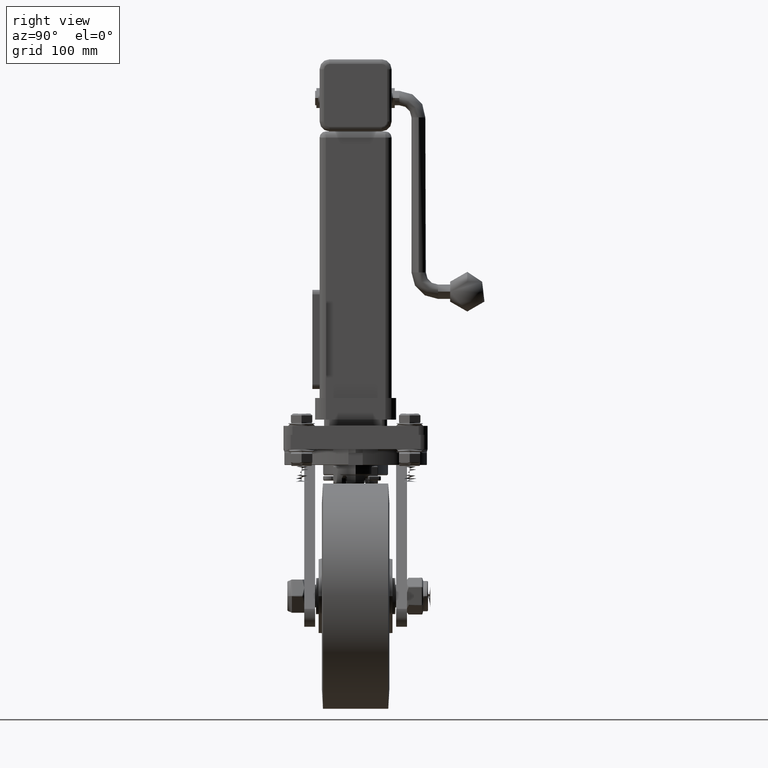
[diagram: clean part render]
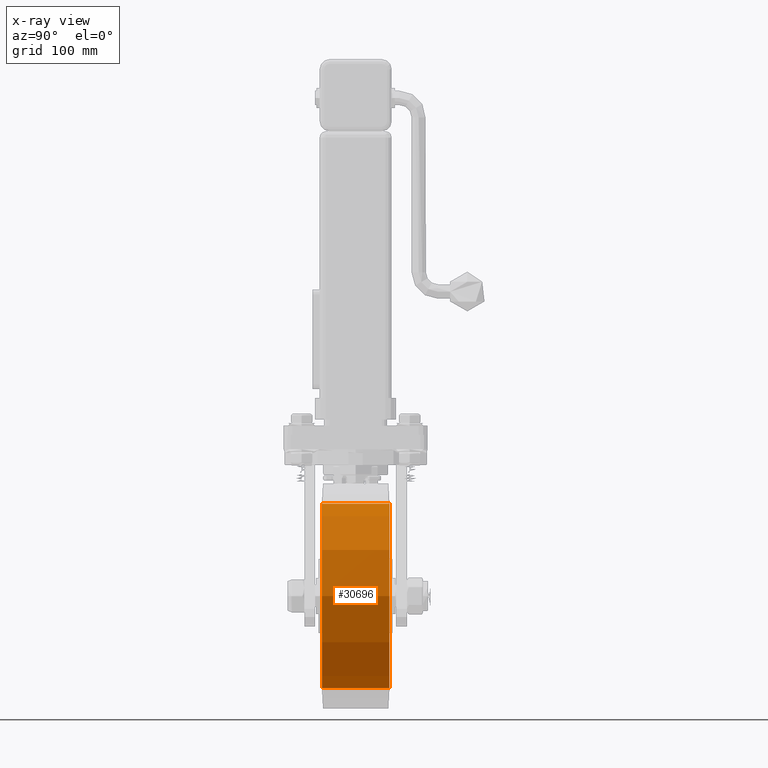
[diagram: x-ray — body ghosted, one internal face saturated and labeled with its STEP entity id]
A machine part, right view, then the same camera in x-ray: the body is ghosted and one INTERNAL B-rep face — a face not visible from any outside direction — is saturated and labeled: STEP entity #30696.
In plain terms, the highlighted cylindrical surface (bore or boss wall) has radius 102.5 mm, axis along (-0, 1, 0).
Its self-contained STEP definition (entity closure, byte-faithful):
#2394=CIRCLE('',#33451,102.5);
#2395=CIRCLE('',#33452,102.5);
#3945=FACE_OUTER_BOUND('',#5885,.T.);
#5885=EDGE_LOOP('',(#21920,#21921,#21922,#21923));
#9379=LINE('',#60185,#11128);
#11128=VECTOR('',#37687,102.5);
#13080=VERTEX_POINT('',#60182);
#13081=VERTEX_POINT('',#60184);
#16369=EDGE_CURVE('',#13080,#13080,#2394,.T.);
#16370=EDGE_CURVE('',#13080,#13081,#9379,.T.);
#16371=EDGE_CURVE('',#13081,#13081,#2395,.T.);
#21920=ORIENTED_EDGE('',*,*,#16369,.F.);
#21921=ORIENTED_EDGE('',*,*,#16370,.T.);
#21922=ORIENTED_EDGE('',*,*,#16371,.T.);
#21923=ORIENTED_EDGE('',*,*,#16370,.F.);
#29755=CYLINDRICAL_SURFACE('',#33450,102.5);
#30696=ADVANCED_FACE('',(#3945),#29755,.T.);
#33450=AXIS2_PLACEMENT_3D('',#60181,#37683,#37684);
#33451=AXIS2_PLACEMENT_3D('',#60183,#37685,#37686);
#33452=AXIS2_PLACEMENT_3D('',#60186,#37688,#37689);
#37683=DIRECTION('center_axis',(-3.49148336110938E-15,1.,0.));
#37684=DIRECTION('ref_axis',(-1.,-3.49148336110938E-15,0.));
#37685=DIRECTION('center_axis',(-3.49148336110938E-15,1.,0.));
#37686=DIRECTION('ref_axis',(-1.,-3.49148336110938E-15,0.));
#37687=DIRECTION('',(3.49148336110938E-15,-1.,0.));
#37688=DIRECTION('center_axis',(-3.49148336110938E-15,1.,0.));
#37689=DIRECTION('ref_axis',(-1.,-3.49148336110938E-15,0.));
#60181=CARTESIAN_POINT('Origin',(-6.93889390390728E-15,1.38777878078145E-14,
0.));
#60182=CARTESIAN_POINT('',(102.5,37.5000000000004,1.25526296912604E-14));
#60183=CARTESIAN_POINT('Origin',(-1.37869519945509E-13,37.5,0.));
#60184=CARTESIAN_POINT('',(102.5,-37.4999999999996,1.25526296912604E-14));
#60185=CARTESIAN_POINT('',(102.5,3.71754832321526E-13,-1.25526296912604E-14));
#60186=CARTESIAN_POINT('Origin',(1.23991732137695E-13,-37.5,0.));